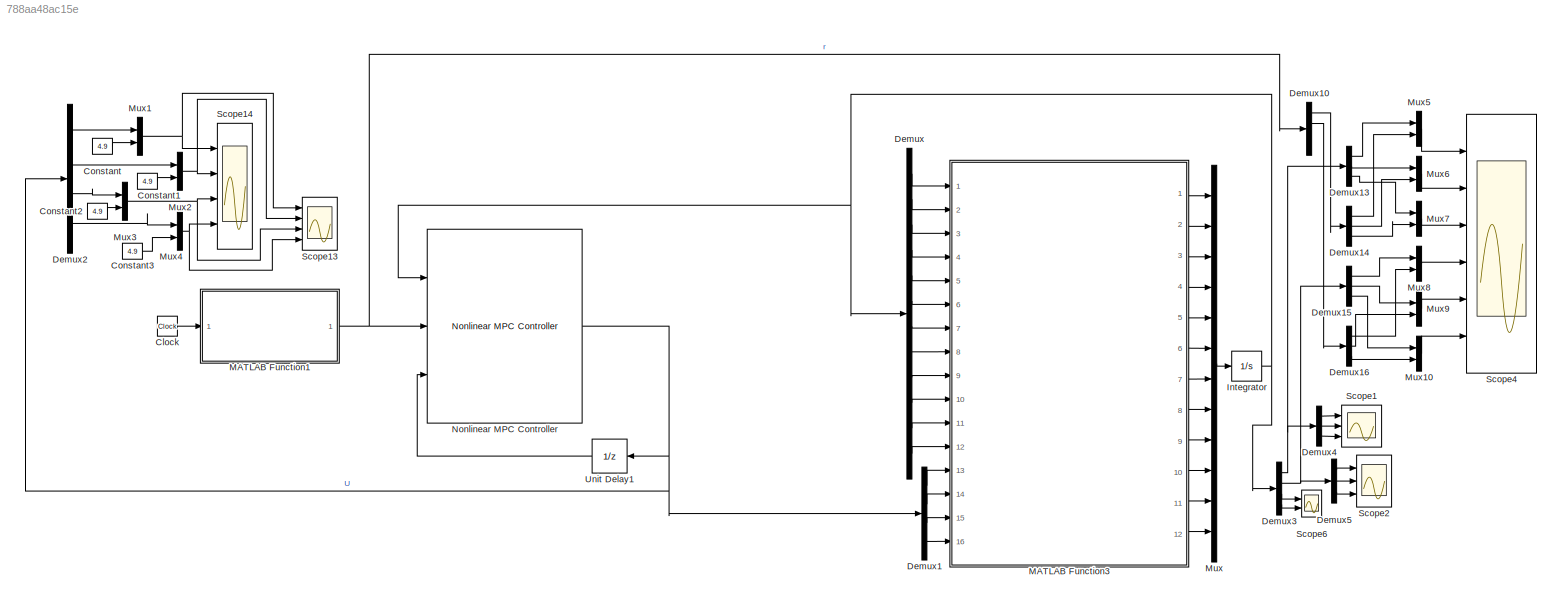
MODEL slx_788aa48ac15e
KIND model
CONFIG AbsTol = auto
CONFIG EnableMultiTasking = off
CONFIG FixedStep = 0.001
CONFIG MaxStep = auto
CONFIG MinStep = auto
CONFIG RelTol = 1e-3
CONFIG SampleTimeConstraint = Unconstrained
CONFIG SolverName = ode4
CONFIG StartTime = 0.0
CONFIG StopTime = 20
BLOCK [Clock] Clock
BLOCK [Constant] Constant
  Value = 4.9
BLOCK [Constant] Constant1
  Value = 4.9
BLOCK [Constant] Constant2
  Value = 4.9
BLOCK [Constant] Constant3
  Value = 4.9
BLOCK [Demux] Demux
  Outputs = 12
  Ports = [1, 12]
BLOCK [Demux] Demux1
  Ports = [1, 4]
BLOCK [Demux] Demux10
  Ports = [1, 4]
BLOCK [Demux] Demux13
  Outputs = 3
  Ports = [1, 3]
BLOCK [Demux] Demux14
  Outputs = 3
  Ports = [1, 3]
BLOCK [Demux] Demux15
  Outputs = 3
  Ports = [1, 3]
BLOCK [Demux] Demux16
  Outputs = 3
  Ports = [1, 3]
BLOCK [Demux] Demux2
  Ports = [1, 4]
BLOCK [Demux] Demux3
  Ports = [1, 4]
BLOCK [Demux] Demux4
  Outputs = 3
  Ports = [1, 3]
BLOCK [Demux] Demux5
  Outputs = 3
  Ports = [1, 3]
BLOCK [Integrator] Integrator
  InitialCondition = [7;-10;0;0;0;0;0;0;0;0;0;0]
  Ports = [1, 1]
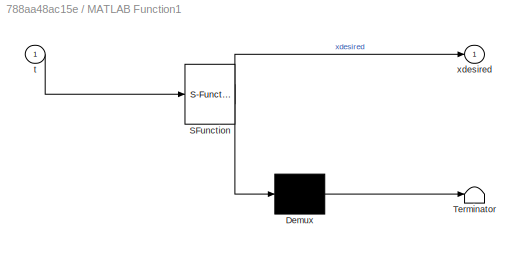
BLOCK [SubSystem] MATLAB Function1
  ErrorFcn = Stateflow.Translate.translate
  PermitHierarchicalResolution = ExplicitOnly
  Ports = [1, 1]
  RequestExecContextInheritance = off
  SFBlockType = MATLAB Function
  TreatAsAtomicUnit = on
BLOCK [Demux] MATLAB Function1/ Demux 
  Outputs = 1
  Ports = [1, 1]
BLOCK [S-Function] MATLAB Function1/ SFunction 
  EnableBusSupport = on
  FunctionName = sf_sfun
  PortCounts = [1 2]
  Ports = [1, 2]
  SFcnIsStateOwnerBlock = off
  SFunctionDeploymentMode = off
  Tag = Stateflow S-Function 1
BLOCK [Terminator] MATLAB Function1/ Terminator 
BLOCK [Inport] MATLAB Function1/t
BLOCK [Outport] MATLAB Function1/xdesired
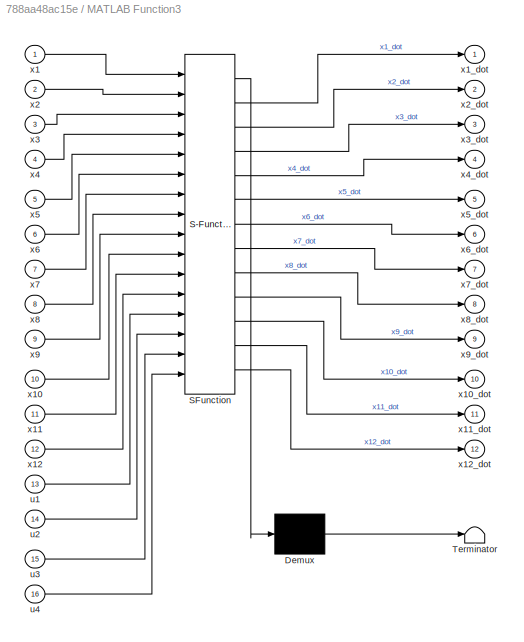
BLOCK [SubSystem] MATLAB Function3
  ErrorFcn = Stateflow.Translate.translate
  PermitHierarchicalResolution = ExplicitOnly
  Ports = [16, 12]
  RequestExecContextInheritance = off
  SFBlockType = MATLAB Function
  TreatAsAtomicUnit = on
BLOCK [Demux] MATLAB Function3/ Demux 
  Outputs = 1
  Ports = [1, 1]
BLOCK [S-Function] MATLAB Function3/ SFunction 
  EnableBusSupport = on
  FunctionName = sf_sfun
  PortCounts = [16 13]
  Ports = [16, 13]
  SFcnIsStateOwnerBlock = off
  SFunctionDeploymentMode = off
  Tag = Stateflow S-Function 2
BLOCK [Terminator] MATLAB Function3/ Terminator 
BLOCK [Inport] MATLAB Function3/u1
  Port = 13
BLOCK [Inport] MATLAB Function3/u2
  Port = 14
BLOCK [Inport] MATLAB Function3/u3
  Port = 15
BLOCK [Inport] MATLAB Function3/u4
  Port = 16
BLOCK [Inport] MATLAB Function3/x1
BLOCK [Inport] MATLAB Function3/x10
  Port = 10
BLOCK [Outport] MATLAB Function3/x10_dot
  Port = 10
BLOCK [Inport] MATLAB Function3/x11
  Port = 11
BLOCK [Outport] MATLAB Function3/x11_dot
  Port = 11
BLOCK [Inport] MATLAB Function3/x12
  Port = 12
BLOCK [Outport] MATLAB Function3/x12_dot
  Port = 12
BLOCK [Outport] MATLAB Function3/x1_dot
BLOCK [Inport] MATLAB Function3/x2
  Port = 2
BLOCK [Outport] MATLAB Function3/x2_dot
  Port = 2
BLOCK [Inport] MATLAB Function3/x3
  Port = 3
BLOCK [Outport] MATLAB Function3/x3_dot
  Port = 3
BLOCK [Inport] MATLAB Function3/x4
  Port = 4
BLOCK [Outport] MATLAB Function3/x4_dot
  Port = 4
BLOCK [Inport] MATLAB Function3/x5
  Port = 5
BLOCK [Outport] MATLAB Function3/x5_dot
  Port = 5
BLOCK [Inport] MATLAB Function3/x6
  Port = 6
BLOCK [Outport] MATLAB Function3/x6_dot
  Port = 6
BLOCK [Inport] MATLAB Function3/x7
  Port = 7
BLOCK [Outport] MATLAB Function3/x7_dot
  Port = 7
BLOCK [Inport] MATLAB Function3/x8
  Port = 8
BLOCK [Outport] MATLAB Function3/x8_dot
  Port = 8
BLOCK [Inport] MATLAB Function3/x9
  Port = 9
BLOCK [Outport] MATLAB Function3/x9_dot
  Port = 9
BLOCK [Mux] Mux
  DisplayOption = bar
  Inputs = 12
  Ports = [12, 1]
BLOCK [Mux] Mux1
  DisplayOption = bar
  Inputs = 2
  Ports = [2, 1]
BLOCK [Mux] Mux10
  DisplayOption = bar
  Inputs = 2
  Ports = [2, 1]
BLOCK [Mux] Mux2
  DisplayOption = bar
  Inputs = 2
  Ports = [2, 1]
BLOCK [Mux] Mux3
  DisplayOption = bar
  Inputs = 2
  Ports = [2, 1]
BLOCK [Mux] Mux4
  DisplayOption = bar
  Inputs = 2
  Ports = [2, 1]
BLOCK [Mux] Mux5
  DisplayOption = bar
  Inputs = 2
  Ports = [2, 1]
BLOCK [Mux] Mux6
  DisplayOption = bar
  Inputs = 2
  Ports = [2, 1]
BLOCK [Mux] Mux7
  DisplayOption = bar
  Inputs = 2
  Ports = [2, 1]
BLOCK [Mux] Mux8
  DisplayOption = bar
  Inputs = 2
  Ports = [2, 1]
BLOCK [Mux] Mux9
  DisplayOption = bar
  Inputs = 2
  Ports = [2, 1]
BLOCK [Reference] Nonlinear MPC Controller  REF=mpclib/Nonlinear MPC Controller  (lib defined in mdl_ae329e0e0455)
  Ports = [3, 1]
  SCDEnableBlockLinearizationSpecification = on
  SourceBlock = mpclib/Nonlinear MPC Controller
  SourceProductBaseCode = MP
  SourceType = NonlinearMPC
BLOCK [Scope] Scope1
  Floating = off
  NameLocation = top
  NumInputPorts = 3
  Ports = [3]
  ScopeSpecificationString = Simulink.scopes.TimeScopeBlockCfg('CurrentConfiguration', extmgr.ConfigurationSet(extmgr.Configuration('Core','General UI',true),extmgr.Configuration('Core','Source UI',true),extmgr.Configuration('Sources','WiredSimulink',true,'DataLoggingSaveFormat','StructureWithTime','DataLoggingDecimation','1','DataLoggingDecimateData',true,'DataLoggingVariableName','ScopeData1'),extmgr.Configuration('Visuals'...<+3653ch>
BLOCK [Scope] Scope13
  Floating = off
  NameLocation = top
  NumInputPorts = 4
  Ports = [4]
  ScopeSpecificationString = Simulink.scopes.TimeScopeBlockCfg('CurrentConfiguration', extmgr.ConfigurationSet(extmgr.Configuration('Core','General UI',true,'FigureColor',[1 1 1]),extmgr.Configuration('Core','Source UI',true),extmgr.Configuration('Sources','WiredSimulink',true,'DataLoggingSaveFormat','StructureWithTime','DataLoggingDecimation','1','DataLoggingDecimateData',true,'DataLoggingVariableName','ScopeData3'),extmgr.C...<+4881ch>
BLOCK [Scope] Scope14
  Floating = off
  NameLocation = top
  NumInputPorts = 4
  Ports = [4]
  ScopeSpecificationString = Simulink.scopes.TimeScopeBlockCfg('CurrentConfiguration', extmgr.ConfigurationSet(extmgr.Configuration('Core','General UI',true,'FigureColor',[1 1 1],'ShowMainToolbar',false),extmgr.Configuration('Core','Source UI',true),extmgr.Configuration('Sources','WiredSimulink',true,'DataLoggingSaveFormat','StructureWithTime','DataLoggingDecimation','1','DataLoggingDecimateData',true,'DataLoggingVariableName...<+4849ch>
BLOCK [Scope] Scope2
  Floating = off
  NameLocation = top
  NumInputPorts = 3
  Ports = [3]
  ScopeSpecificationString = Simulink.scopes.TimeScopeBlockCfg('CurrentConfiguration', extmgr.ConfigurationSet(extmgr.Configuration('Core','General UI',true),extmgr.Configuration('Core','Source UI',true),extmgr.Configuration('Sources','WiredSimulink',true,'DataLoggingSaveFormat','StructureWithTime','DataLoggingDecimation','1','DataLoggingDecimateData',true,'DataLoggingVariableName','ScopeData2'),extmgr.Configuration('Visuals'...<+3641ch>
BLOCK [Scope] Scope4
  Floating = off
  NameLocation = top
  NumInputPorts = 6
  Ports = [6]
  ScopeSpecificationString = Simulink.scopes.TimeScopeBlockCfg('CurrentConfiguration', extmgr.ConfigurationSet(extmgr.Configuration('Core','General UI',true,'FigureColor',[1 1 1]),extmgr.Configuration('Core','Source UI',true),extmgr.Configuration('Sources','WiredSimulink',true,'DataLoggingSaveFormat','StructureWithTime','DataLoggingDecimation','1','DataLoggingVariableName','ScopeData1'),extmgr.Configuration('Visuals','Time Do...<+6763ch>
BLOCK [Scope] Scope6
  Floating = off
  NumInputPorts = 2
  Ports = [2]
  ScopeSpecificationString = Simulink.scopes.TimeScopeBlockCfg('CurrentConfiguration', extmgr.ConfigurationSet(extmgr.Configuration('Core','General UI',true,'FigureColor',[1 1 1]),extmgr.Configuration('Core','Source UI',true),extmgr.Configuration('Sources','WiredSimulink',true,'DataLoggingVariableName','ScopeData1'),extmgr.Configuration('Visuals','Time Domain',true,'SerializedDisplays',{struct('MinYLimReal','-6.19011','MaxYLi...<+1796ch>
BLOCK [UnitDelay] Unit Delay1
  HasFrameUpgradeWarning = on
  InitialCondition = [4.9;4.9;4.9;4.9]
  SampleTime = 0.1
LINE Clock:1 -> MATLAB Function1:1
LINE Constant1:1 -> Mux2:2
LINE Constant2:1 -> Mux3:2
LINE Constant3:1 -> Mux4:2
LINE Constant:1 -> Mux1:2
LINE Demux10:1 -> Demux14:1
LINE Demux10:2 -> Demux16:1
LINE Demux13:1 -> Mux5:1
LINE Demux13:2 -> Mux6:1
LINE Demux13:3 -> Mux7:1
LINE Demux14:1 -> Mux5:2
LINE Demux14:2 -> Mux6:2
LINE Demux14:3 -> Mux7:2
LINE Demux15:1 -> Mux8:1
LINE Demux15:2 -> Mux9:1
LINE Demux15:3 -> Mux10:1
LINE Demux16:1 -> Mux8:2
LINE Demux16:2 -> Mux9:2
LINE Demux16:3 -> Mux10:2
LINE Demux1:1 -> MATLAB Function3:13
LINE Demux1:2 -> MATLAB Function3:14
LINE Demux1:3 -> MATLAB Function3:15
LINE Demux1:4 -> MATLAB Function3:16
LINE Demux2:1 -> Mux1:1
LINE Demux2:2 -> Mux2:1
LINE Demux2:3 -> Mux3:1
LINE Demux2:4 -> Mux4:1
NET Demux3:1 -> Demux13:1, Demux4:1
NET Demux3:2 -> Demux15:1, Demux5:1
LINE Demux3:3 -> Scope6:1
LINE Demux3:4 -> Scope6:2
LINE Demux4:1 -> Scope1:1
LINE Demux4:2 -> Scope1:2
LINE Demux4:3 -> Scope1:3
LINE Demux5:1 -> Scope2:1
LINE Demux5:2 -> Scope2:2
LINE Demux5:3 -> Scope2:3
LINE Demux:1 -> MATLAB Function3:1
LINE Demux:10 -> MATLAB Function3:10
LINE Demux:11 -> MATLAB Function3:11
LINE Demux:12 -> MATLAB Function3:12
LINE Demux:2 -> MATLAB Function3:2
LINE Demux:3 -> MATLAB Function3:3
LINE Demux:4 -> MATLAB Function3:4
LINE Demux:5 -> MATLAB Function3:5
LINE Demux:6 -> MATLAB Function3:6
LINE Demux:7 -> MATLAB Function3:7
LINE Demux:8 -> MATLAB Function3:8
LINE Demux:9 -> MATLAB Function3:9
NET Integrator:1 -> Demux3:1, Demux:1, Nonlinear MPC Controller:1
NET MATLAB Function1:1 -> Demux10:1, Nonlinear MPC Controller:2
LINE MATLAB Function3:1 -> Mux:1
LINE MATLAB Function3:10 -> Mux:10
LINE MATLAB Function3:11 -> Mux:11
LINE MATLAB Function3:12 -> Mux:12
LINE MATLAB Function3:2 -> Mux:2
LINE MATLAB Function3:3 -> Mux:3
LINE MATLAB Function3:4 -> Mux:4
LINE MATLAB Function3:5 -> Mux:5
LINE MATLAB Function3:6 -> Mux:6
LINE MATLAB Function3:7 -> Mux:7
LINE MATLAB Function3:8 -> Mux:8
LINE MATLAB Function3:9 -> Mux:9
LINE Mux10:1 -> Scope4:6
NET Mux1:1 -> Scope13:1, Scope14:1
NET Mux2:1 -> Scope13:2, Scope14:2
NET Mux3:1 -> Scope13:3, Scope14:3
NET Mux4:1 -> Scope13:4, Scope14:4
LINE Mux5:1 -> Scope4:1
LINE Mux6:1 -> Scope4:2
LINE Mux7:1 -> Scope4:3
LINE Mux8:1 -> Scope4:4
LINE Mux9:1 -> Scope4:5
LINE Mux:1 -> Integrator:1
NET Nonlinear MPC Controller:1 -> Demux1:1, Demux2:1, Unit Delay1:1
LINE Unit Delay1:1 -> Nonlinear MPC Controller:3
note: NET lines group one-source signal fan-out (src -> all destinations, sorted); 1:1 wires keep LINE
CHART MATLAB Function1 states=1 transitions=1
  STATE_LABEL 'eML_blk_kernel()'
  STATE_LABEL 'SCRIPT:\nfunction xdesired   = QuadrotorReferenceTrajectory( t )\n% This function generates reference signal for nonlinear MPC controller\n% used in the quadrotor path following example.\n\n% <copyright redacted>\n\n%#codegen\nx =6*sin(t/3);\ny = -6*sin(t/3).*cos(t/3);\nz = 6*cos(t/3);\n%z = 10+zeros(1,length(t));\nphi = zeros(1,length(t));\ntheta = zeros(1,length(t));\npsi = zeros(1,length(t));\n%...<+338ch>'
CHART MATLAB Function3 states=1 transitions=1
  STATE_LABEL 'eML_blk_kernel()'
  STATE_LABEL 'SCRIPT:\nfunction [x1_dot,x2_dot,x3_dot,x4_dot,x5_dot,x6_dot,x7_dot,x8_dot,x9_dot,x10_dot,x11_dot,x12_dot]= fcn(x1,x2,x3,x4,x5,x6,x7,x8,x9,x10,x11,x12,u1,u2,u3,u4)\n\nIxx= 1.2; \nIyy= 1.2;\nIzz= 2.3;\nk=1;\n%k = 1e-3;\nL= 0.25;\nm= 2;\nkm= 0.2;\n%km = 0.5e-4;\ng= 9.81;\ngamma = km/k; \n\nIxx = (1/12)*m*(0.2^2+0.2^2);\nIyy= (1/12)*m*(0.2^2+0.2^2);\nIzz= (1/12)*m*(0.2^2+0.2^2);\nI= [Ixx 0 0;0 Iyy 0;0 0 Izz];\n\n\n%R-ZYX...<+3117ch>'
CHART  states=0 transitions=0
CHART  states=0 transitions=0
